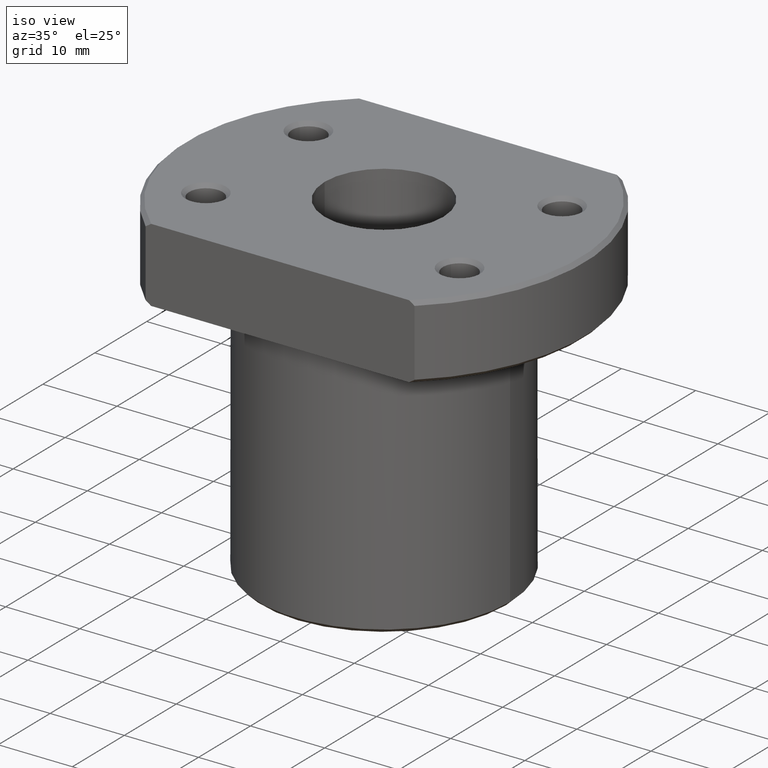
[diagram: clean part render]
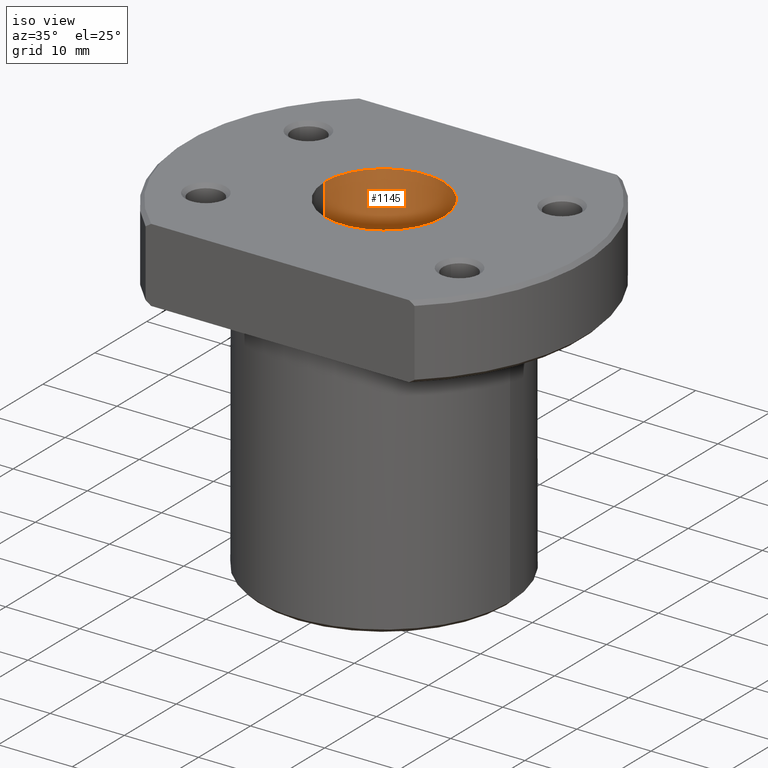
[diagram: same view with one face highlighted and labeled with its STEP entity id]
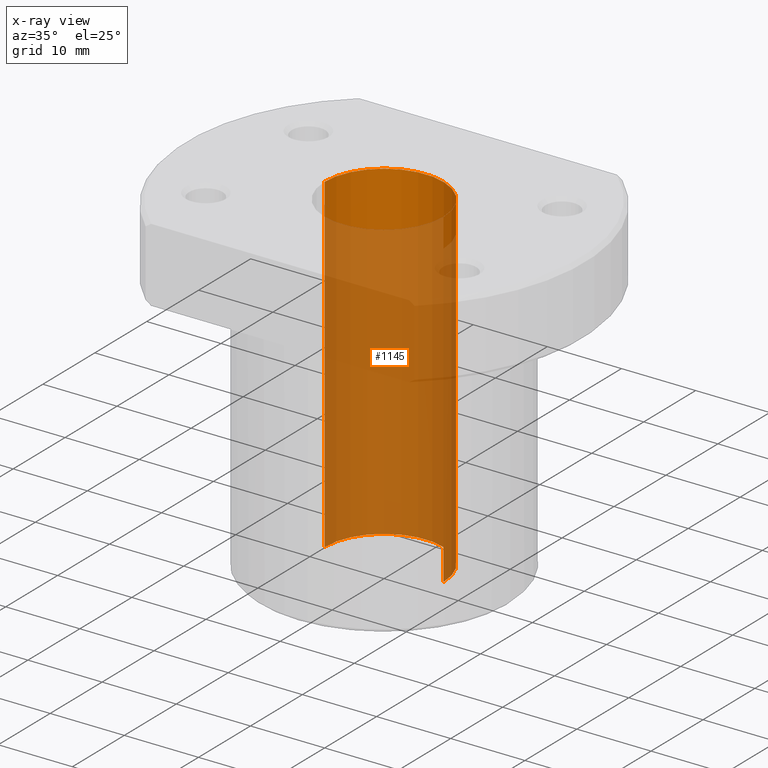
[diagram: x-ray of the same camera — body ghosted, the highlighted face saturated]
A machine part, iso view. The second image highlights one B-rep face of the part: STEP entity #1145.
The next image is the same camera in x-ray: the body ghosted, the highlighted face saturated — about 86% of this face is hidden behind the body in this view.
In plain terms, the highlighted cylindrical surface (partial cylindrical patch) has radius 8 mm, axis along (0, 0, 1).
Its self-contained STEP definition (entity closure, byte-faithful):
#807=AXIS2_PLACEMENT_3D('Circle Axis2P3D',#805,#806,$) ;
#1118=AXIS2_PLACEMENT_3D('Cylinder Axis2P3D',#1115,#1116,#1117) ;
#1122=AXIS2_PLACEMENT_3D('Circle Axis2P3D',#1120,#1121,$) ;
#800=CARTESIAN_POINT('Vertex',(-8.,9.79685083058E-016,45.)) ;
#802=CARTESIAN_POINT('Vertex',(8.,0.,45.)) ;
#805=CARTESIAN_POINT('Axis2P3D Location',(0.,0.,45.)) ;
#1115=CARTESIAN_POINT('Axis2P3D Location',(0.,0.,17.5)) ;
#1120=CARTESIAN_POINT('Axis2P3D Location',(0.,0.,0.5)) ;
#1124=CARTESIAN_POINT('Vertex',(8.,-1.95937016612E-015,0.5)) ;
#1126=CARTESIAN_POINT('Vertex',(-8.,9.79685083058E-016,0.5)) ;
#1129=CARTESIAN_POINT('Line Origine',(8.,0.,35.)) ;
#1134=CARTESIAN_POINT('Line Origine',(-8.,9.79685083058E-016,35.)) ;
#806=DIRECTION('Axis2P3D Direction',(0.,0.,1.)) ;
#1116=DIRECTION('Axis2P3D Direction',(0.,0.,1.)) ;
#1117=DIRECTION('Axis2P3D XDirection',(1.,0.,0.)) ;
#1121=DIRECTION('Axis2P3D Direction',(0.,0.,1.)) ;
#1130=DIRECTION('Vector Direction',(0.,0.,1.)) ;
#1135=DIRECTION('Vector Direction',(0.,0.,1.)) ;
#1131=VECTOR('Line Direction',#1130,1.) ;
#1136=VECTOR('Line Direction',#1135,1.) ;
#1140=ORIENTED_EDGE('',*,*,#1128,.F.) ;
#1141=ORIENTED_EDGE('',*,*,#1133,.T.) ;
#1142=ORIENTED_EDGE('',*,*,#809,.T.) ;
#1143=ORIENTED_EDGE('',*,*,#1138,.F.) ;
#1145=ADVANCED_FACE('',(#1144),#1119,.F.) ;
#808=CIRCLE('generated circle',#807,8.) ;
#1123=CIRCLE('generated circle',#1122,8.) ;
#1119=CYLINDRICAL_SURFACE('generated cylinder',#1118,8.) ;
#809=EDGE_CURVE('',#803,#801,#808,.T.) ;
#1128=EDGE_CURVE('',#1125,#1127,#1123,.T.) ;
#1133=EDGE_CURVE('',#1125,#803,#1132,.T.) ;
#1138=EDGE_CURVE('',#1127,#801,#1137,.T.) ;
#1139=EDGE_LOOP('',(#1140,#1141,#1142,#1143)) ;
#1144=FACE_OUTER_BOUND('',#1139,.T.) ;
#1132=LINE('Line',#1129,#1131) ;
#1137=LINE('Line',#1134,#1136) ;
#801=VERTEX_POINT('',#800) ;
#803=VERTEX_POINT('',#802) ;
#1125=VERTEX_POINT('',#1124) ;
#1127=VERTEX_POINT('',#1126) ;